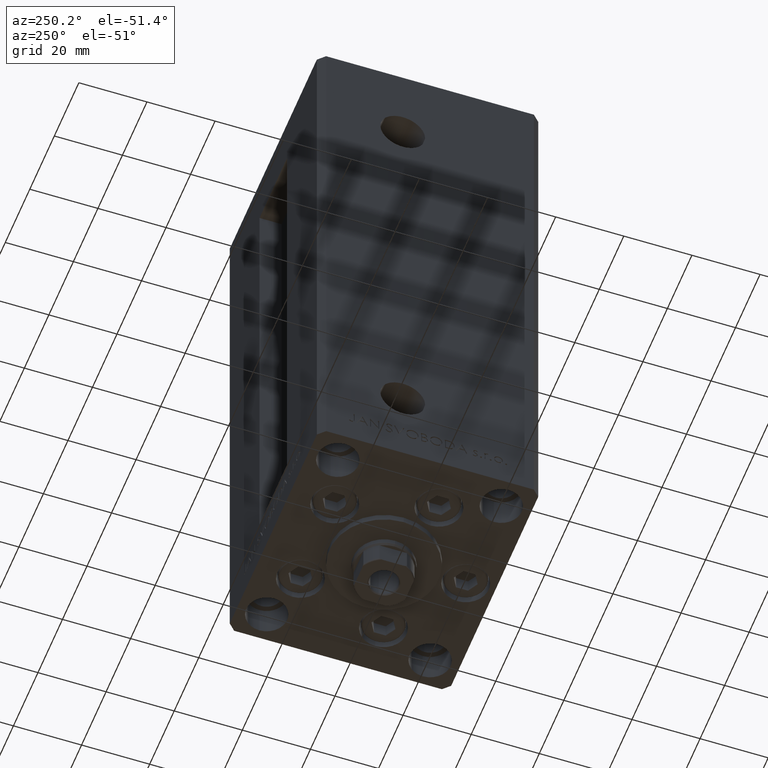
[diagram: clean part render]
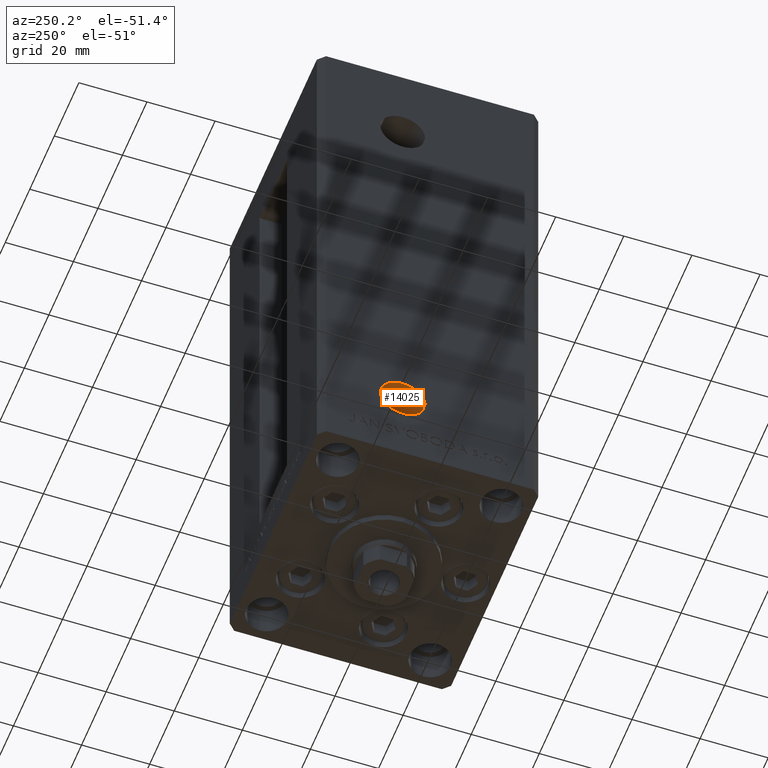
[diagram: same view with one face highlighted and labeled with its STEP entity id]
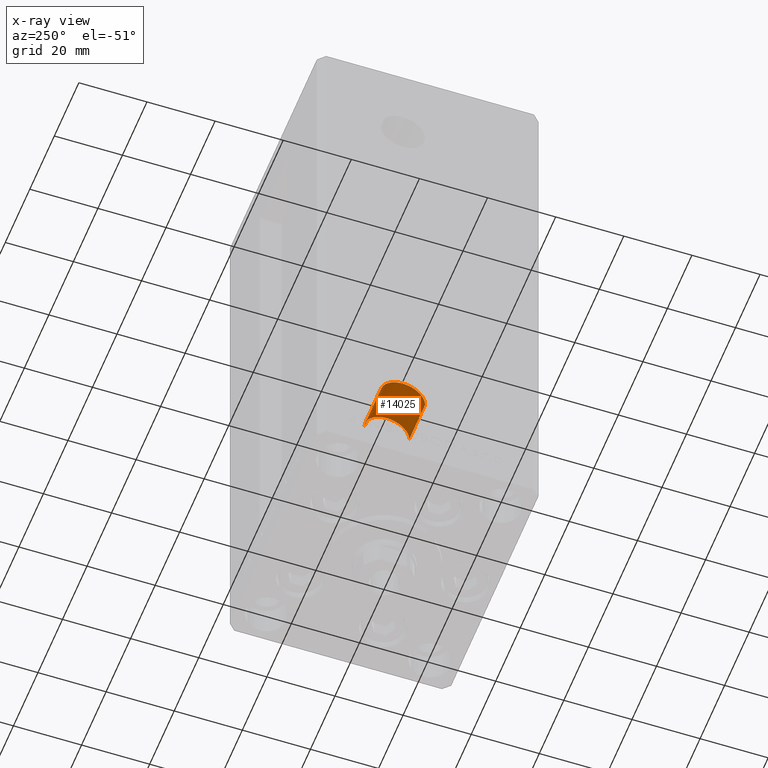
[diagram: x-ray of the same camera — body ghosted, the highlighted face saturated]
A machine part, auxiliary view. The second image highlights one B-rep face of the part: STEP entity #14025.
The next image is the same camera in x-ray: the body ghosted, the highlighted face saturated — about 0% of this face is hidden behind the body in this view.
In plain terms, the highlighted cylindrical surface (edge-blend (fillet) strip) has radius 6.58 mm, axis along (-1, -0, -0).
Its self-contained STEP definition (entity closure, byte-faithful):
#1999 = CYLINDRICAL_SURFACE ( 'NONE', #13392, 6.580000000000002736 ) ;
#4824 = CARTESIAN_POINT ( 'NONE',  ( -37.50000000000000000, 1.419999999999975060, 9.000000000000007105 ) ) ;
#5770 = FACE_OUTER_BOUND ( 'NONE', #48660, .T. ) ;
#6250 = CARTESIAN_POINT ( 'NONE',  ( -24.50000000000000000, 14.57999999999998408, 9.000000000000007105 ) ) ;
#6509 = VERTEX_POINT ( 'NONE', #4824 ) ;
#6853 = ORIENTED_EDGE ( 'NONE', *, *, #10630, .T. ) ;
#6976 = DIRECTION ( 'NONE',  ( 0.000000000000000000, -1.000000000000000000, 0.000000000000000000 ) ) ;
#7181 = VECTOR ( 'NONE', #44644, 1000.000000000000000 ) ;
#7574 = CARTESIAN_POINT ( 'NONE',  ( -37.50000000000000000, 7.999999999999977796, 9.000000000000007105 ) ) ;
#10214 = VERTEX_POINT ( 'NONE', #25287 ) ;
#10630 = EDGE_CURVE ( 'NONE', #6509, #15634, #17255, .T. ) ;
#13392 = AXIS2_PLACEMENT_3D ( 'NONE', #48735, #13813, #44480 ) ;
#13813 = DIRECTION ( 'NONE',  ( -1.000000000000000000, -2.275047181608927644E-16, -0.000000000000000000 ) ) ;
#14025 = ADVANCED_FACE ( 'NONE', ( #5770 ), #1999, .F. ) ;
#15634 = VERTEX_POINT ( 'NONE', #42407 ) ;
#17180 = ORIENTED_EDGE ( 'NONE', *, *, #22898, .F. ) ;
#17255 = CIRCLE ( 'NONE', #38996, 6.580000000000002736 ) ;
#20016 = ORIENTED_EDGE ( 'NONE', *, *, #23985, .T. ) ;
#22710 = VERTEX_POINT ( 'NONE', #36409 ) ;
#22898 = EDGE_CURVE ( 'NONE', #22710, #10214, #48873, .T. ) ;
#23159 = DIRECTION ( 'NONE',  ( 0.000000000000000000, -1.000000000000000000, 0.000000000000000000 ) ) ;
#23409 = DIRECTION ( 'NONE',  ( -1.000000000000000000, -2.275047181608927644E-16, 0.000000000000000000 ) ) ;
#23978 = AXIS2_PLACEMENT_3D ( 'NONE', #45198, #41424, #6976 ) ;
#23985 = EDGE_CURVE ( 'NONE', #22710, #6509, #28306, .T. ) ;
#25287 = CARTESIAN_POINT ( 'NONE',  ( -24.50000000000000000, 14.57999999999998408, 9.000000000000007105 ) ) ;
#28306 = LINE ( 'NONE', #29292, #7181 ) ;
#29292 = CARTESIAN_POINT ( 'NONE',  ( -24.50000000000000000, 1.419999999999978613, 9.000000000000007105 ) ) ;
#32026 = EDGE_CURVE ( 'NONE', #10214, #15634, #48718, .T. ) ;
#36409 = CARTESIAN_POINT ( 'NONE',  ( -24.50000000000000000, 1.419999999999978613, 9.000000000000007105 ) ) ;
#37409 = DIRECTION ( 'NONE',  ( -1.000000000000000000, -2.275047181608927644E-16, -0.000000000000000000 ) ) ;
#38996 = AXIS2_PLACEMENT_3D ( 'NONE', #7574, #23409, #23159 ) ;
#39162 = ORIENTED_EDGE ( 'NONE', *, *, #32026, .F. ) ;
#41161 = VECTOR ( 'NONE', #37409, 1000.000000000000000 ) ;
#41424 = DIRECTION ( 'NONE',  ( -1.000000000000000000, -2.275047181608927644E-16, 0.000000000000000000 ) ) ;
#42407 = CARTESIAN_POINT ( 'NONE',  ( -37.50000000000000000, 14.57999999999998053, 9.000000000000007105 ) ) ;
#44480 = DIRECTION ( 'NONE',  ( 0.000000000000000000, -1.000000000000000000, 0.000000000000000000 ) ) ;
#44644 = DIRECTION ( 'NONE',  ( -1.000000000000000000, -2.275047181608927644E-16, -0.000000000000000000 ) ) ;
#45198 = CARTESIAN_POINT ( 'NONE',  ( -24.50000000000000000, 7.999999999999981348, 9.000000000000007105 ) ) ;
#48660 = EDGE_LOOP ( 'NONE', ( #39162, #17180, #20016, #6853 ) ) ;
#48718 = LINE ( 'NONE', #6250, #41161 ) ;
#48735 = CARTESIAN_POINT ( 'NONE',  ( -24.50000000000000000, 7.999999999999981348, 9.000000000000007105 ) ) ;
#48873 = CIRCLE ( 'NONE', #23978, 6.580000000000002736 ) ;